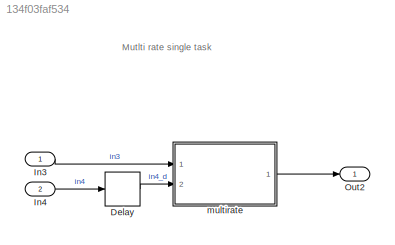
MODEL slx_134f03faf534
KIND model
BLOCK [Delay] Delay
  DelayLength = 1
  InitialCondition = 0
  InputPortMap = u0
  Ports = [1, 1]
  StateName = delay
BLOCK [Inport] In3
  IconDisplay = Port number
  OutDataTypeStr = FLOAT32
  SampleTime = 1
BLOCK [Inport] In4
  IconDisplay = Port number
  OutDataTypeStr = UINT16
  Port = 2
  SampleTime = 2
BLOCK [Outport] Out2
  IconDisplay = Port number
  OutDataTypeStr = boolean
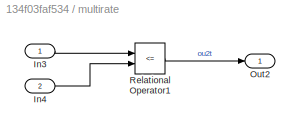
BLOCK [SubSystem] multirate
  FunctionWithSeparateData = off
  MaskHideContents = off
  MinAlgLoopOccurrences = off
  Opaque = off
  Ports = [2, 1]
  PropExecContextOutsideSubsystem = off
  RTWFcnNameOpts = Use subsystem name
  RTWSystemCode = Reusable function
  RequestExecContextInheritance = off
  TreatAsAtomicUnit = on
BLOCK [Inport] multirate/In3
  IconDisplay = Port number
  OutDataTypeStr = FLOAT32
BLOCK [Inport] multirate/In4
  IconDisplay = Port number
  OutDataTypeStr = UINT16
  Port = 2
BLOCK [Outport] multirate/Out2
  IconDisplay = Port number
  OutDataTypeStr = boolean
BLOCK [RelationalOperator] multirate/Relational Operator1
  InputSameDT = off
  Operator = <=
  OutDataTypeStr = boolean
  Ports = [2, 1]
ANNOTATION (root): Mutlti rate single task
LINE Delay:1 -> multirate:2
LINE In3:1 -> multirate:1
LINE In4:1 -> Delay:1
LINE multirate/In3:1 -> multirate/Relational Operator1:1
LINE multirate/In4:1 -> multirate/Relational Operator1:2
LINE multirate/Relational Operator1:1 -> multirate/Out2:1
LINE multirate:1 -> Out2:1
